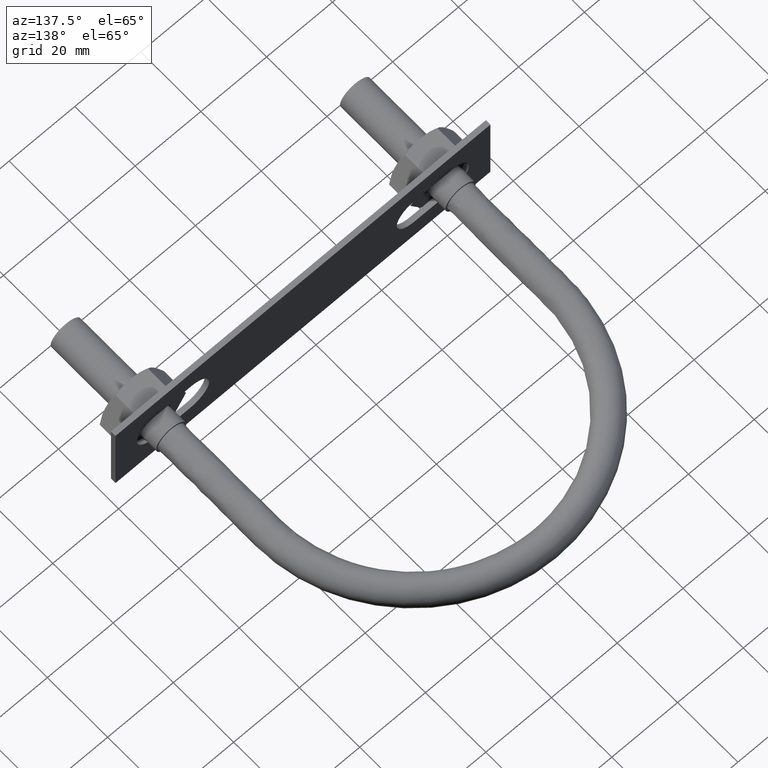
[diagram: clean part render]
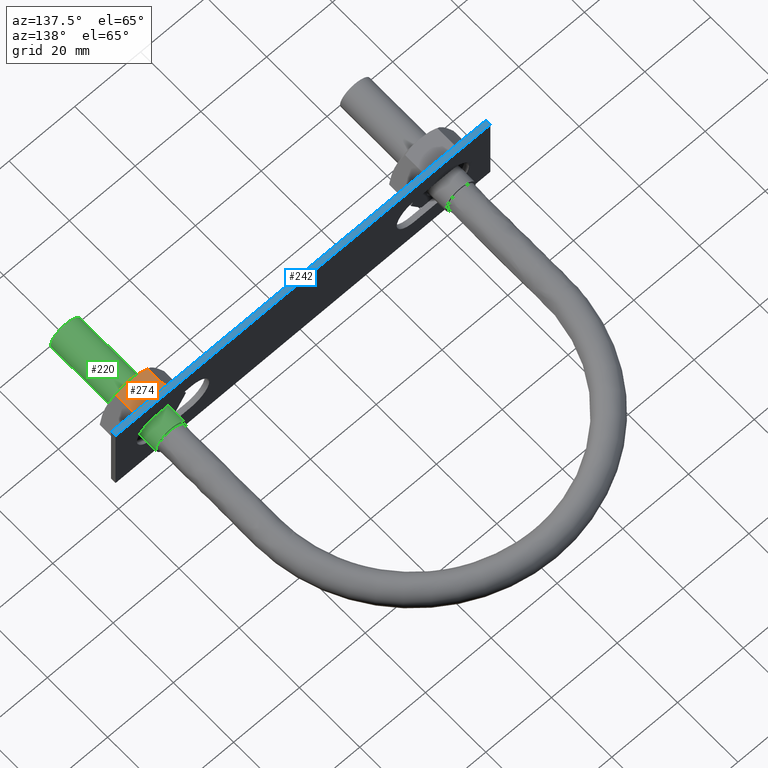
[diagram: same view with three faces highlighted in distinct colors, each labeled with its STEP entity id]
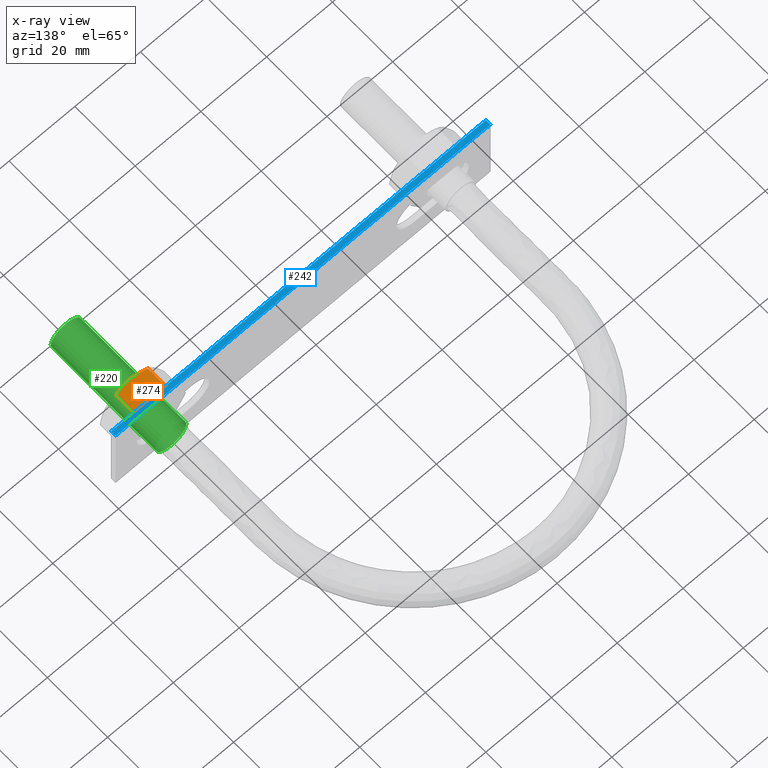
[diagram: x-ray of the same camera — body ghosted, the three highlighted faces saturated]
A machine part, auxiliary view with three faces highlighted in distinct colors.
The next image is the same camera in x-ray (body ghosted, the three faces saturated) — at least one of them is partly hidden behind the body in this view.
Their STEP definitions:

[orange] entity #274 — the highlighted planar face has unit normal (0, -0, -1).
#274 = ADVANCED_FACE( '', ( #417 ), #418, .F. );
#417 = FACE_OUTER_BOUND( '', #727, .T. );
#418 = PLANE( '', #728 );
#727 = EDGE_LOOP( '', ( #1177, #1178, #1179, #1180, #1181 ) );
#728 = AXIS2_PLACEMENT_3D( '', #1182, #1183, #1184 );
#1177 = ORIENTED_EDGE( '', *, *, #1428, .F. );
#1178 = ORIENTED_EDGE( '', *, *, #1395, .F. );
#1179 = ORIENTED_EDGE( '', *, *, #1429, .F. );
#1180 = ORIENTED_EDGE( '', *, *, #1412, .F. );
#1181 = ORIENTED_EDGE( '', *, *, #1423, .F. );
#1182 = CARTESIAN_POINT( '', ( 39.0925227118882, -5.80000000000000, 8.50000000000000 ) );
#1183 = DIRECTION( '', ( 3.74915180455534E-033, -2.29561756065155E-049, -1.00000000000000 ) );
#1184 = DIRECTION( '', ( -6.12303176911189E-017, -1.00000000000000, 0.000000000000000 ) );
#1395 = EDGE_CURVE( '', #1624, #1627, #1628, .T. );
#1412 = EDGE_CURVE( '', #1656, #1658, #1659, .T. );
#1423 = EDGE_CURVE( '', #1677, #1656, #1679, .T. );
#1428 = EDGE_CURVE( '', #1627, #1677, #1686, .T. );
#1429 = EDGE_CURVE( '', #1658, #1624, #1687, .F. );
#1624 = VERTEX_POINT( '', #2024 );
#1627 = VERTEX_POINT( '', #2027 );
#1628 = B_SPLINE_CURVE_WITH_KNOTS( '', 3, ( #2028, #2029, #2030, #2031, #2032, #2033 ), .UNSPECIFIED., .F., .F., ( 4, 2, 4 ), ( 0.0107224888714710, 0.0132032657403443, 0.0156840426092177 ), .UNSPECIFIED. );
#1656 = VERTEX_POINT( '', #2083 );
#1658 = VERTEX_POINT( '', #2085 );
#1659 = LINE( '', #2086, #2087 );
#1677 = VERTEX_POINT( '', #2109 );
#1679 = LINE( '', #2111, #2112 );
#1686 = B_SPLINE_CURVE_WITH_KNOTS( '', 3, ( #2132, #2133, #2134, #2135, #2136, #2137 ), .UNSPECIFIED., .F., .F., ( 4, 2, 4 ), ( 0.0156840426092177, 0.0181633795370703, 0.0206427164649230 ), .UNSPECIFIED. );
#1687 = LINE( '', #2138, #2139 );
#2024 = CARTESIAN_POINT( '', ( 48.8774993593029, -13.0494446500535, 8.50000000000000 ) );
#2027 = CARTESIAN_POINT( '', ( 44.0000000000000, -13.8000000000000, 8.50000000000000 ) );
#2028 = CARTESIAN_POINT( '', ( 48.8774993593029, -13.0494446500535, 8.50000000000000 ) );
#2029 = CARTESIAN_POINT( '', ( 48.0828739329411, -13.2777799069586, 8.50000000000000 ) );
#2030 = CARTESIAN_POINT( '', ( 47.2812026223240, -13.4663452882827, 8.50000000000000 ) );
#2031 = CARTESIAN_POINT( '', ( 45.6573811694461, -13.7278850822183, 8.50000000000000 ) );
#2032 = CARTESIAN_POINT( '', ( 44.8350787536116, -13.8000000000000, 8.50000000000000 ) );
#2033 = CARTESIAN_POINT( '', ( 44.0000000000000, -13.8000000000000, 8.50000000000000 ) );
#2083 = CARTESIAN_POINT( '', ( 39.1225006406971, -5.80000000000000, 8.50000000000000 ) );
#2085 = CARTESIAN_POINT( '', ( 48.8774993593029, -5.80000000000000, 8.50000000000000 ) );
#2086 = CARTESIAN_POINT( '', ( 34.2000000000000, -5.80000000000000, 8.50000000000000 ) );
#2087 = VECTOR( '', #2408, 1000.00000000000 );
#2109 = CARTESIAN_POINT( '', ( 39.1225006406971, -13.0494446500535, 8.50000000000000 ) );
#2111 = CARTESIAN_POINT( '', ( 39.1225006406971, -5.80000000000000, 8.50000000000000 ) );
#2112 = VECTOR( '', #2431, 1000.00000000000 );
#2132 = CARTESIAN_POINT( '', ( 44.0000000000000, -13.8000000000000, 8.50000000000000 ) );
#2133 = CARTESIAN_POINT( '', ( 43.1654059591282, -13.8000000000000, 8.50000000000000 ) );
#2134 = CARTESIAN_POINT( '', ( 42.3409017267985, -13.7276895388738, 8.50000000000000 ) );
#2135 = CARTESIAN_POINT( '', ( 40.7171925770404, -13.4660056252267, 8.50000000000000 ) );
#2136 = CARTESIAN_POINT( '', ( 39.9161421877728, -13.2774971896907, 8.50000000000000 ) );
#2137 = CARTESIAN_POINT( '', ( 39.1225006406971, -13.0494446500535, 8.50000000000000 ) );
#2138 = CARTESIAN_POINT( '', ( 48.8774993593029, -5.80000000000000, 8.50000000000000 ) );
#2139 = VECTOR( '', #2436, 1000.00000000000 );
#2408 = DIRECTION( '', ( 1.00000000000000, -6.12303176911189E-017, 3.74915180455534E-033 ) );
#2431 = DIRECTION( '', ( 6.12303176911189E-017, 1.00000000000000, -4.95179021115217E-066 ) );
#2436 = DIRECTION( '', ( 6.12303176911189E-017, 1.00000000000000, -4.95179021115217E-066 ) );

[blue] entity #242 — the highlighted planar face has unit normal (0, -0, -1).
#242 = ADVANCED_FACE( '', ( #346 ), #347, .F. );
#346 = FACE_OUTER_BOUND( '', #656, .T. );
#347 = PLANE( '', #657 );
#656 = EDGE_LOOP( '', ( #928, #929, #930, #931 ) );
#657 = AXIS2_PLACEMENT_3D( '', #932, #933, #934 );
#928 = ORIENTED_EDGE( '', *, *, #1331, .T. );
#929 = ORIENTED_EDGE( '', *, *, #1312, .F. );
#930 = ORIENTED_EDGE( '', *, *, #1303, .F. );
#931 = ORIENTED_EDGE( '', *, *, #1341, .T. );
#932 = CARTESIAN_POINT( '', ( 57.0000000000000, -5.80000000000000, 12.5000000000000 ) );
#933 = DIRECTION( '', ( 0.000000000000000, -6.12303176911189E-017, -1.00000000000000 ) );
#934 = DIRECTION( '', ( 1.00000000000000, 0.000000000000000, 0.000000000000000 ) );
#1303 = EDGE_CURVE( '', #1475, #1470, #1477, .T. );
#1312 = EDGE_CURVE( '', #1470, #1490, #1494, .T. );
#1331 = EDGE_CURVE( '', #1525, #1490, #1526, .T. );
#1341 = EDGE_CURVE( '', #1475, #1525, #1537, .T. );
#1470 = VERTEX_POINT( '', #1754 );
#1475 = VERTEX_POINT( '', #1761 );
#1477 = LINE( '', #1764, #1765 );
#1490 = VERTEX_POINT( '', #1780 );
#1494 = LINE( '', #1786, #1787 );
#1525 = VERTEX_POINT( '', #1828 );
#1526 = LINE( '', #1829, #1830 );
#1537 = LINE( '', #1850, #1851 );
#1754 = CARTESIAN_POINT( '', ( -57.0000000000000, -5.80000000000000, 12.5000000000000 ) );
#1761 = CARTESIAN_POINT( '', ( 57.0000000000000, -5.80000000000000, 12.5000000000000 ) );
#1764 = CARTESIAN_POINT( '', ( 57.0000000000000, -5.80000000000000, 12.5000000000000 ) );
#1765 = VECTOR( '', #2225, 1000.00000000000 );
#1780 = CARTESIAN_POINT( '', ( -57.0000000000000, -4.30000000000000, 12.5000000000000 ) );
#1786 = CARTESIAN_POINT( '', ( -57.0000000000000, -5.80000000000000, 12.5000000000000 ) );
#1787 = VECTOR( '', #2242, 1000.00000000000 );
#1828 = CARTESIAN_POINT( '', ( 57.0000000000000, -4.30000000000000, 12.5000000000000 ) );
#1829 = CARTESIAN_POINT( '', ( 57.0000000000000, -4.30000000000000, 12.5000000000000 ) );
#1830 = VECTOR( '', #2277, 1000.00000000000 );
#1850 = CARTESIAN_POINT( '', ( 57.0000000000000, -5.80000000000000, 12.5000000000000 ) );
#1851 = VECTOR( '', #2287, 1000.00000000000 );
#2225 = DIRECTION( '', ( -1.00000000000000, 0.000000000000000, 0.000000000000000 ) );
#2242 = DIRECTION( '', ( 0.000000000000000, 1.00000000000000, -6.12303176911189E-017 ) );
#2277 = DIRECTION( '', ( -1.00000000000000, 0.000000000000000, 0.000000000000000 ) );
#2287 = DIRECTION( '', ( 0.000000000000000, 1.00000000000000, -6.12303176911189E-017 ) );

[green] entity #220 — the highlighted cylindrical surface (bore or boss wall) has radius 4.6 mm, axis along (0, 1, 0).
#220 = ADVANCED_FACE( '', ( #294, #295 ), #296, .T. );
#294 = FACE_OUTER_BOUND( '', #604, .T. );
#295 = FACE_OUTER_BOUND( '', #605, .T. );
#296 = CYLINDRICAL_SURFACE( '', #606, 4.60000000000003 );
#604 = EDGE_LOOP( '', ( #764 ) );
#605 = EDGE_LOOP( '', ( #765 ) );
#606 = AXIS2_PLACEMENT_3D( '', #766, #767, #768 );
#764 = ORIENTED_EDGE( '', *, *, #1290, .T. );
#765 = ORIENTED_EDGE( '', *, *, #1291, .F. );
#766 = CARTESIAN_POINT( '', ( 44.0000000000000, -100.076000000000, 0.000000000000000 ) );
#767 = DIRECTION( '', ( 6.12303176911189E-017, 1.00000000000000, 0.000000000000000 ) );
#768 = DIRECTION( '', ( 1.00000000000000, -6.12303176911189E-017, 0.000000000000000 ) );
#1290 = EDGE_CURVE( '', #1450, #1450, #1451, .T. );
#1291 = EDGE_CURVE( '', #1452, #1452, #1453, .T. );
#1450 = VERTEX_POINT( '', #1732 );
#1451 = CIRCLE( '', #1733, 4.60000000000004 );
#1452 = VERTEX_POINT( '', #1734 );
#1453 = CIRCLE( '', #1735, 4.60000000000004 );
#1732 = CARTESIAN_POINT( '', ( 48.6000000000000, -2.81659461379149E-016, 0.000000000000000 ) );
#1733 = AXIS2_PLACEMENT_3D( '', #2196, #2197, #2198 );
#1734 = CARTESIAN_POINT( '', ( 48.6000000000000, -35.0000000000000, 0.000000000000000 ) );
#1735 = AXIS2_PLACEMENT_3D( '', #2199, #2200, #2201 );
#2196 = CARTESIAN_POINT( '', ( 44.0000000000000, 0.000000000000000, 0.000000000000000 ) );
#2197 = DIRECTION( '', ( -6.12303176911189E-017, -1.00000000000000, 0.000000000000000 ) );
#2198 = DIRECTION( '', ( 1.00000000000000, -6.12303176911189E-017, 0.000000000000000 ) );
#2199 = CARTESIAN_POINT( '', ( 44.0000000000000, -35.0000000000000, 0.000000000000000 ) );
#2200 = DIRECTION( '', ( -6.12303176911189E-017, -1.00000000000000, 0.000000000000000 ) );
#2201 = DIRECTION( '', ( 1.00000000000000, -6.12303176911189E-017, 0.000000000000000 ) );